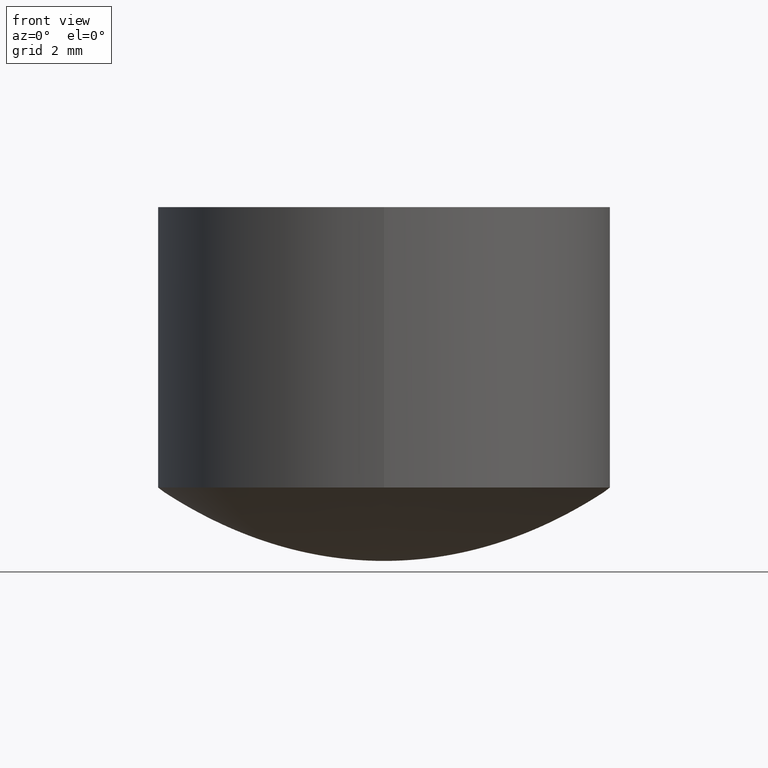
[diagram: clean part render]
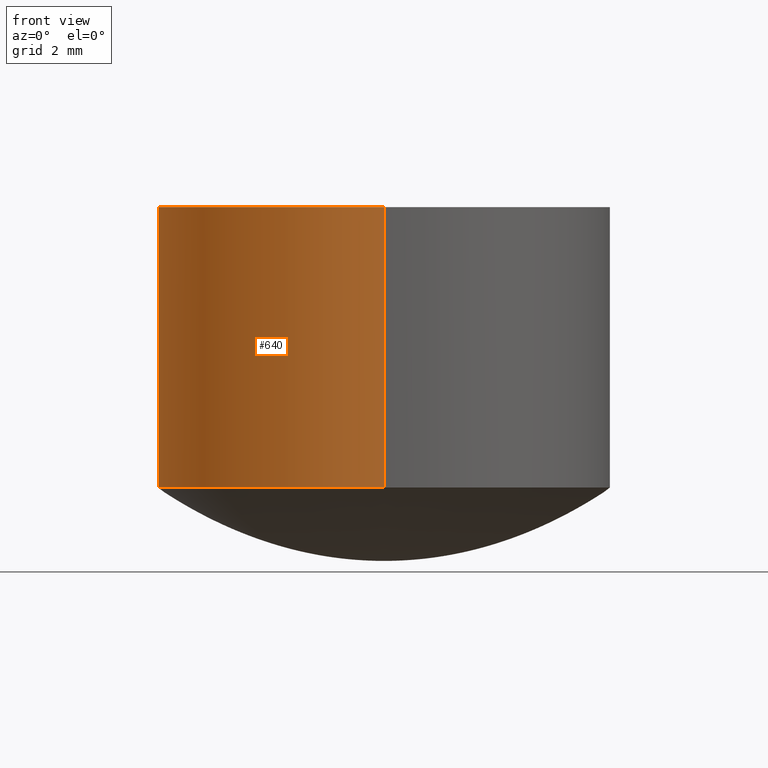
[diagram: same view with one face highlighted and labeled with its STEP entity id]
A machine part, front view. The second image highlights one B-rep face of the part: STEP entity #640.
In plain terms, the highlighted cylindrical surface (partial cylindrical patch) has radius 5 mm, axis along (0, 0, -1).
Its self-contained STEP definition (entity closure, byte-faithful):
#43 = EDGE_CURVE ( 'NONE', #572, #308, #1046, .T. ) ;
#67 = ORIENTED_EDGE ( 'NONE', *, *, #43, .T. ) ;
#95 = LINE ( 'NONE', #511, #692 ) ;
#138 = EDGE_CURVE ( 'NONE', #477, #572, #95, .T. ) ;
#164 = VECTOR ( 'NONE', #409, 1000.000000000000000 ) ;
#183 = EDGE_CURVE ( 'NONE', #395, #308, #415, .T. ) ;
#210 = EDGE_LOOP ( 'NONE', ( #241, #543, #725, #67 ) ) ;
#241 = ORIENTED_EDGE ( 'NONE', *, *, #183, .F. ) ;
#253 = DIRECTION ( 'NONE',  ( 0.000000000000000000, 0.000000000000000000, -1.000000000000000000 ) ) ;
#273 = CYLINDRICAL_SURFACE ( 'NONE', #737, 5.000000000000000000 ) ;
#308 = VERTEX_POINT ( 'NONE', #740 ) ;
#382 = CARTESIAN_POINT ( 'NONE',  ( 0.000000000000000000, 0.000000000000000000, 7.799999999999999822 ) ) ;
#395 = VERTEX_POINT ( 'NONE', #703 ) ;
#409 = DIRECTION ( 'NONE',  ( 0.000000000000000000, 0.000000000000000000, -1.000000000000000000 ) ) ;
#415 = LINE ( 'NONE', #1001, #164 ) ;
#417 = CARTESIAN_POINT ( 'NONE',  ( 0.000000000000000000, 0.000000000000000000, 8.189999999999999503 ) ) ;
#477 = VERTEX_POINT ( 'NONE', #787 ) ;
#481 = DIRECTION ( 'NONE',  ( 0.000000000000000000, 1.000000000000000000, 0.000000000000000000 ) ) ;
#511 = CARTESIAN_POINT ( 'NONE',  ( 0.000000000000000000, 5.000000000000000000, 8.189999999999999503 ) ) ;
#543 = ORIENTED_EDGE ( 'NONE', *, *, #762, .T. ) ;
#569 = CARTESIAN_POINT ( 'NONE',  ( 0.000000000000000000, 0.000000000000000000, 1.617560169019170102 ) ) ;
#572 = VERTEX_POINT ( 'NONE', #862 ) ;
#573 = CIRCLE ( 'NONE', #1007, 5.000000000000000000 ) ;
#640 = ADVANCED_FACE ( 'NONE', ( #736 ), #273, .T. ) ;
#692 = VECTOR ( 'NONE', #253, 1000.000000000000000 ) ;
#703 = CARTESIAN_POINT ( 'NONE',  ( 6.123233995736766282E-16, -5.000000000000000000, 7.799999999999999822 ) ) ;
#712 = DIRECTION ( 'NONE',  ( 0.000000000000000000, 0.000000000000000000, -1.000000000000000000 ) ) ;
#725 = ORIENTED_EDGE ( 'NONE', *, *, #138, .T. ) ;
#736 = FACE_OUTER_BOUND ( 'NONE', #210, .T. ) ;
#737 = AXIS2_PLACEMENT_3D ( 'NONE', #417, #1045, #998 ) ;
#740 = CARTESIAN_POINT ( 'NONE',  ( 6.123233995736766282E-16, -5.000000000000000000, 1.617560169019170102 ) ) ;
#762 = EDGE_CURVE ( 'NONE', #395, #477, #573, .T. ) ;
#787 = CARTESIAN_POINT ( 'NONE',  ( 0.000000000000000000, 5.000000000000000000, 7.799999999999999822 ) ) ;
#809 = AXIS2_PLACEMENT_3D ( 'NONE', #569, #890, #481 ) ;
#862 = CARTESIAN_POINT ( 'NONE',  ( 0.000000000000000000, 5.000000000000000000, 1.617560169019170102 ) ) ;
#877 = DIRECTION ( 'NONE',  ( 0.000000000000000000, 1.000000000000000000, 0.000000000000000000 ) ) ;
#890 = DIRECTION ( 'NONE',  ( 0.000000000000000000, 0.000000000000000000, 1.000000000000000000 ) ) ;
#998 = DIRECTION ( 'NONE',  ( 0.000000000000000000, 1.000000000000000000, 0.000000000000000000 ) ) ;
#1001 = CARTESIAN_POINT ( 'NONE',  ( 6.123233995736766282E-16, -5.000000000000000000, 8.189999999999999503 ) ) ;
#1007 = AXIS2_PLACEMENT_3D ( 'NONE', #382, #712, #877 ) ;
#1045 = DIRECTION ( 'NONE',  ( 0.000000000000000000, 0.000000000000000000, -1.000000000000000000 ) ) ;
#1046 = CIRCLE ( 'NONE', #809, 5.000000000000000000 ) ;